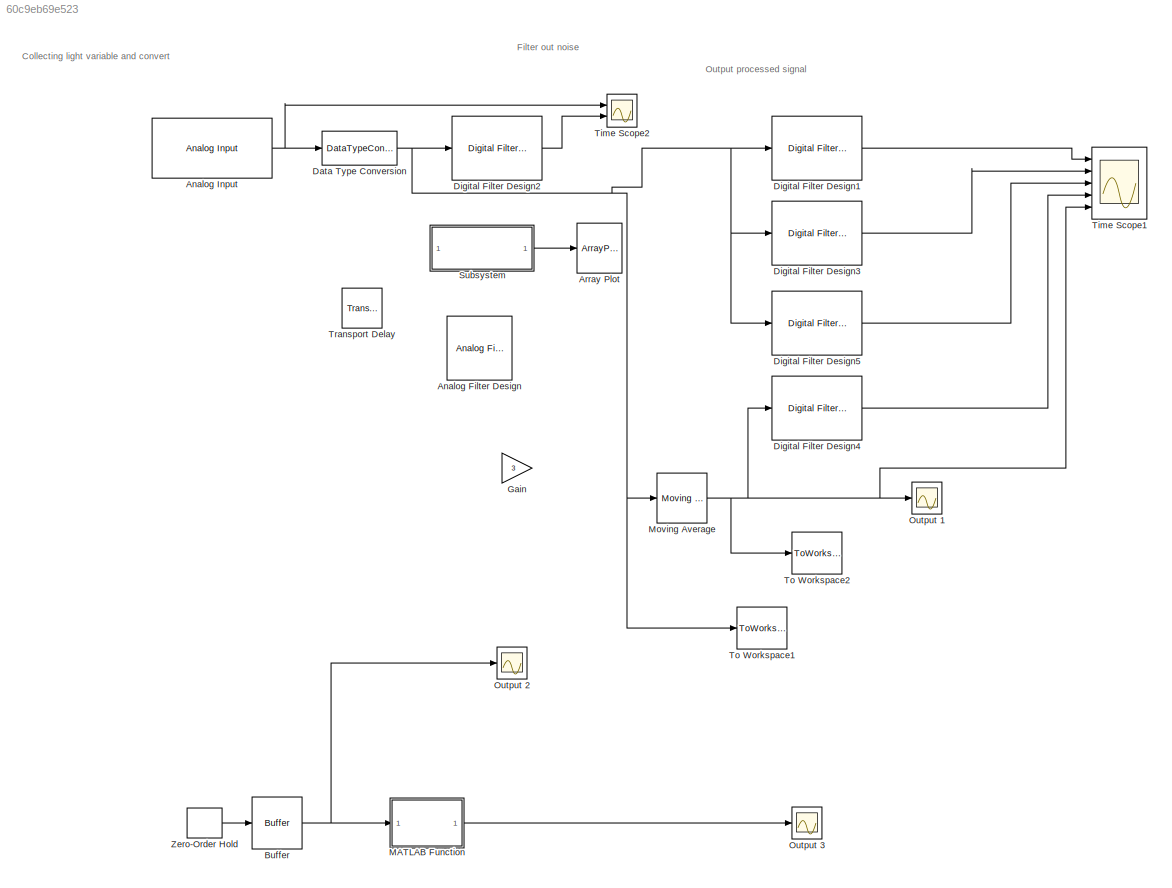
MODEL slx_60c9eb69e523
KIND model
CONFIG AbsTol = auto
CONFIG EnableMultiTasking = on
CONFIG FixedStep = auto
CONFIG MaxStep = auto
CONFIG MinStep = auto
CONFIG RelTol = 1e-3
CONFIG SampleTimeConstraint = Unconstrained
CONFIG Solver = FixedStepAuto
CONFIG SolverName = FixedStepAuto
CONFIG StartTime = 0.0
CONFIG StopTime = 60
BLOCK [Reference] Analog Filter Design  REF=dsparch4/Analog
Filter Design
  Commented = on
  Ports = [1, 1]
  SourceBlock = dsparch4/Analog\nFilter Design
  SourceProductBaseCode = DS
  SourceProductName = DSP System Toolbox
  SourceType = Analog Filter Design
BLOCK [Reference] Analog Input  REF=arduinolib/Analog Input
  Ports = [0, 1]
  SourceBlock = arduinolib/Analog Input
  SourceProductBaseCode = ARDUINO
  SourceProductName = Simulink Support Package for Arduino Hardware
  SourceType = Arduino Analog Input
BLOCK [ArrayPlot] Array Plot
  Commented = on
  Ports = [1]
  ScopeSpecificationString = dsp.scopes.ArrayPlotBlockSpecification('CurrentConfiguration', extmgr.ConfigurationSet(extmgr.Configuration('Core','General UI',true),extmgr.Configuration('Core','Source UI',true),extmgr.Configuration('Sources','WiredSimulink',true),extmgr.Configuration('Visuals','Array Plot',true,'DisplayPropertyDefaults',struct('MinYLimReal','-0.0545439','MaxYLimReal','0.34253','YLabelReal','Amplitude','MinYLimM...<+1393ch>
BLOCK [Buffer] Buffer
  Commented = on
  N = 34
  OutputFrames = off
BLOCK [DataTypeConversion] Data Type Conversion
  RndMeth = Floor
  SaturateOnIntegerOverflow = off
BLOCK [Reference] Digital Filter Design1  REF=dsparch4/Digital
Filter Design
  Commented = on
  Ports = [1, 1]
  SourceBlock = dsparch4/Digital\nFilter Design
  SourceProductBaseCode = DS
  SourceProductName = DSP System Toolbox
  SourceType = Digital Filter Design
  UserDataPersistent = on
BLOCK [Reference] Digital Filter Design2  REF=dsparch4/Digital
Filter Design
  Commented = on
  Ports = [1, 1]
  SourceBlock = dsparch4/Digital\nFilter Design
  SourceProductBaseCode = DS
  SourceProductName = DSP System Toolbox
  SourceType = Digital Filter Design
  UserDataPersistent = on
BLOCK [Reference] Digital Filter Design3  REF=dsparch4/Digital
Filter Design
  Ports = [1, 1]
  SourceBlock = dsparch4/Digital\nFilter Design
  SourceProductBaseCode = DS
  SourceProductName = DSP System Toolbox
  SourceType = Digital Filter Design
  UserDataPersistent = on
BLOCK [Reference] Digital Filter Design4  REF=dsparch4/Digital
Filter Design
  Commented = on
  Ports = [1, 1]
  SourceBlock = dsparch4/Digital\nFilter Design
  SourceProductBaseCode = DS
  SourceProductName = DSP System Toolbox
  SourceType = Digital Filter Design
  UserDataPersistent = on
BLOCK [Reference] Digital Filter Design5  REF=dsparch4/Digital
Filter Design
  Commented = on
  Ports = [1, 1]
  SourceBlock = dsparch4/Digital\nFilter Design
  SourceProductBaseCode = DS
  SourceProductName = DSP System Toolbox
  SourceType = Digital Filter Design
  UserDataPersistent = on
BLOCK [Gain] Gain
  Commented = on
  Gain = 3
  OutDataTypeStr = Inherit: Inherit via internal rule
  ParamDataTypeStr = Inherit: Inherit via internal rule
  SaturateOnIntegerOverflow = off
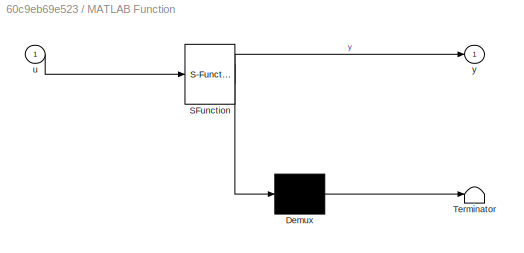
BLOCK [SubSystem] MATLAB Function
  Commented = on
  ErrorFcn = Stateflow.Translate.translate
  PermitHierarchicalResolution = ExplicitOnly
  Ports = [1, 1]
  RequestExecContextInheritance = off
  SFBlockType = MATLAB Function
  TreatAsAtomicUnit = on
BLOCK [Demux] MATLAB Function/ Demux 
  Outputs = 1
  Ports = [1, 1]
BLOCK [S-Function] MATLAB Function/ SFunction 
  EnableBusSupport = on
  FunctionName = sf_sfun
  PortCounts = [1 2]
  Ports = [1, 2]
  SFcnIsStateOwnerBlock = off
  SFunctionDeploymentMode = off
  Tag = Stateflow S-Function matlab_ppg_v3 2
BLOCK [Terminator] MATLAB Function/ Terminator 
BLOCK [Inport] MATLAB Function/u
  IconDisplay = Port number
BLOCK [Outport] MATLAB Function/y
  IconDisplay = Port number
BLOCK [Reference] Moving Average  REF=dspstat3/Moving
Average
  Ports = [1, 1]
  SourceBlock = dspstat3/Moving\nAverage
  SourceProductBaseCode = DS
  SourceProductName = DSP System Toolbox
  SourceType = dsp.simulink.MovingAverage
BLOCK [Scope] Output 1
  Floating = off
  NumInputPorts = 1
  Ports = [1]
  ScopeSpecificationString = Simulink.scopes.TimeScopeBlockCfg('CurrentConfiguration', extmgr.ConfigurationSet(extmgr.Configuration('Core','General UI',true),extmgr.Configuration('Core','Source UI',true),extmgr.Configuration('Sources','WiredSimulink',true,'DataLoggingVariableName','ScopeData4'),extmgr.Configuration('Visuals','Time Domain',true,'SerializedDisplays',{struct('MinYLimReal','2298.38057','MaxYLimReal','2782.86672',...<+1462ch>
BLOCK [Scope] Output 2
  Commented = on
  Floating = off
  NumInputPorts = 1
  Ports = [1]
  ScopeSpecificationString = Simulink.scopes.TimeScopeBlockCfg('CurrentConfiguration', extmgr.ConfigurationSet(extmgr.Configuration('Core','General UI',true),extmgr.Configuration('Core','Source UI',true),extmgr.Configuration('Sources','WiredSimulink',true,'DataLoggingVariableName','ScopeData1'),extmgr.Configuration('Visuals','Time Domain',true,'SerializedDisplays',{struct('MinYLimReal','-27.32856','MaxYLimReal','24.70033','YL...<+1852ch>
BLOCK [Scope] Output 3
  Commented = on
  Floating = off
  NumInputPorts = 1
  Ports = [1]
  ScopeSpecificationString = Simulink.scopes.TimeScopeBlockCfg('CurrentConfiguration', extmgr.ConfigurationSet(extmgr.Configuration('Core','General UI',true),extmgr.Configuration('Core','Source UI',true),extmgr.Configuration('Sources','WiredSimulink',true,'DataLoggingVariableName','ScopeData2'),extmgr.Configuration('Visuals','Time Domain',true,'SerializedDisplays',{struct('MinYLimReal','-43.32024','MaxYLimReal','389.88215','Y...<+2169ch>
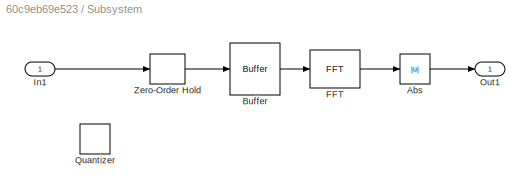
BLOCK [SubSystem] Subsystem
  Commented = on
  Ports = [1, 1]
  RequestExecContextInheritance = off
BLOCK [Abs] Subsystem/Abs
  SaturateOnIntegerOverflow = off
BLOCK [Buffer] Subsystem/Buffer
  N = 1536
  OutputFrames = off
BLOCK [Reference] Subsystem/FFT  REF=dspxfrm3/FFT
  Ports = [1, 1]
  SourceBlock = dspxfrm3/FFT
  SourceProductBaseCode = DS
  SourceProductName = DSP System Toolbox
  SourceType = FFT
BLOCK [Inport] Subsystem/In1
  IconDisplay = Port number
BLOCK [Outport] Subsystem/Out1
  IconDisplay = Port number
BLOCK [Quantizer] Subsystem/Quantizer
  Commented = on
BLOCK [ZeroOrderHold] Subsystem/Zero-Order Hold
  SampleTime = -1
BLOCK [Scope] Time Scope1
  DefaultConfigurationName = spbscopes.TimeScopeBlockCfg
  Floating = off
  NumInputPorts = 5
  Ports = [5]
  ScopeSpecificationString = spbscopes.TimeScopeBlockCfg('CurrentConfiguration', extmgr.ConfigurationSet(extmgr.Configuration('Core','General UI',true),extmgr.Configuration('Core','Source UI',true),extmgr.Configuration('Sources','WiredSimulink',true,'DataLoggingVariableName','ScopeData3'),extmgr.Configuration('Visuals','Time Domain',true,'DisplayPropertyDefaults',struct('MinYLimReal','-129.66402','MaxYLimReal','960.02248','YL...<+1890ch>
  UserDataPersistent = on
BLOCK [Scope] Time Scope2
  Commented = on
  DefaultConfigurationName = spbscopes.TimeScopeBlockCfg
  Floating = off
  NumInputPorts = 2
  Ports = [2]
  ScopeSpecificationString = spbscopes.TimeScopeBlockCfg('CurrentConfiguration', extmgr.ConfigurationSet(extmgr.Configuration('Core','General UI',true),extmgr.Configuration('Core','Source UI',true),extmgr.Configuration('Sources','WiredSimulink',true,'DataLoggingVariableName','ScopeData4'),extmgr.Configuration('Visuals','Time Domain',true,'DisplayPropertyDefaults',struct('MinYLimReal','-1.79135','MaxYLimReal','1.27718','YLabel...<+1442ch>
  UserDataPersistent = on
BLOCK [ToWorkspace] To Workspace1
  Commented = on
  MaxDataPoints = inf
  Ports = [1]
  SampleTime = -1
  Save2DSignal = 2-D array (concatenate along first dimension)
  VariableName = yout
BLOCK [ToWorkspace] To Workspace2
  MaxDataPoints = inf
  Ports = [1]
  SampleTime = -1
  Save2DSignal = 2-D array (concatenate along first dimension)
  SaveFormat = Structure With Time
  VariableName = yout2
BLOCK [TransportDelay] Transport Delay
  Commented = on
  Ports = [1, 1]
BLOCK [ZeroOrderHold] Zero-Order Hold
  Commented = on
  SampleTime = -1
ANNOTATION (root): Collecting light variable and convert
ANNOTATION (root): Filter out noise
ANNOTATION (root): Output processed signal
NET Analog Input:1 -> Data Type Conversion:1, Time Scope2:1
NET Buffer:1 -> MATLAB Function:1, Output 2:1
NET Data Type Conversion:1 -> Digital Filter Design1:1, Digital Filter Design2:1, Digital Filter Design3:1, Digital Filter Design5:1, Moving Average:1, To Workspace1:1
LINE Digital Filter Design1:1 -> Time Scope1:1
LINE Digital Filter Design2:1 -> Time Scope2:2
LINE Digital Filter Design3:1 -> Time Scope1:2
LINE Digital Filter Design4:1 -> Time Scope1:4
LINE Digital Filter Design5:1 -> Time Scope1:3
LINE MATLAB Function:1 -> Output 3:1
NET Moving Average:1 -> Digital Filter Design4:1, Output 1:1, Time Scope1:5, To Workspace2:1
LINE Subsystem/Abs:1 -> Subsystem/Out1:1
LINE Subsystem/Buffer:1 -> Subsystem/FFT:1
LINE Subsystem/FFT:1 -> Subsystem/Abs:1
LINE Subsystem/In1:1 -> Subsystem/Zero-Order Hold:1
LINE Subsystem/Zero-Order Hold:1 -> Subsystem/Buffer:1
LINE Subsystem:1 -> Array Plot:1
LINE Zero-Order Hold:1 -> Buffer:1
note: NET lines group one-source signal fan-out (src -> all destinations, sorted); 1:1 wires keep LINE
CHART MATLAB Function states=1 transitions=1
  STATE_LABEL 'eML_blk_kernel()'
  STATE_LABEL 'SCRIPT:\nfunction y = applyFilter(u)\n\ny = sgolayfilt(u,1,3);\n'
